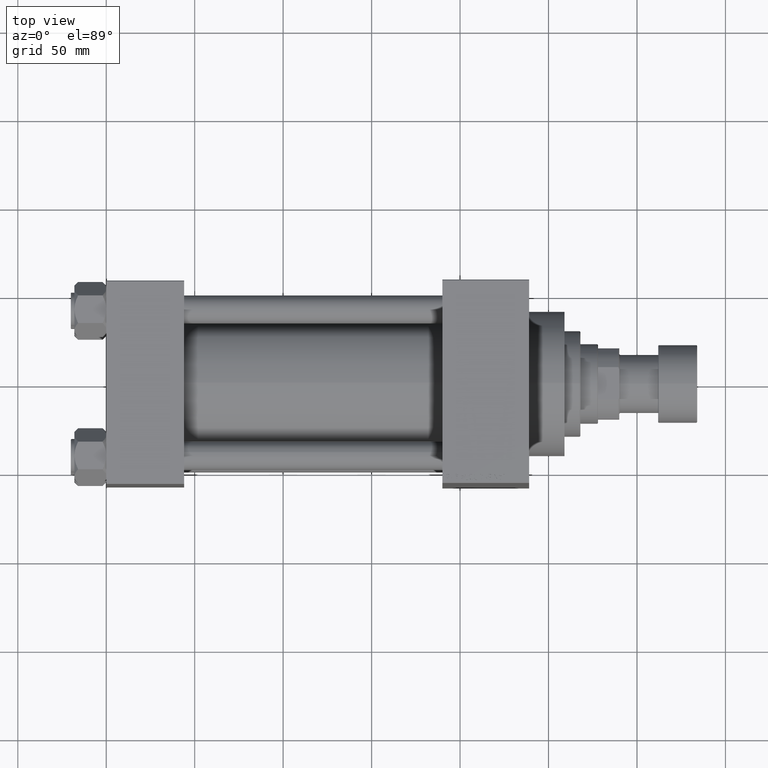
[diagram: clean part render]
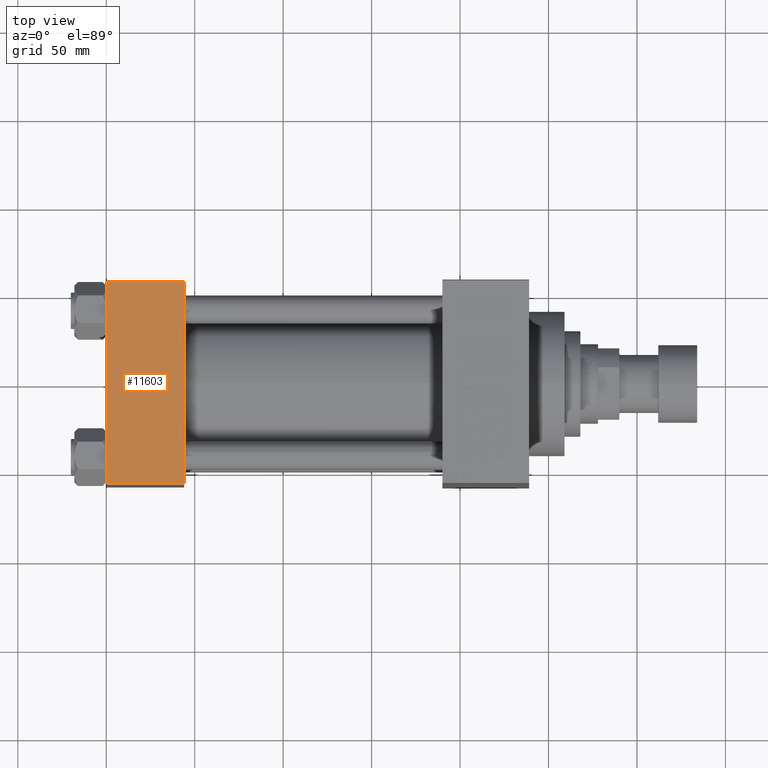
[diagram: same view with one face highlighted and labeled with its STEP entity id]
A machine part, top view. The second image highlights one B-rep face of the part: STEP entity #11603.
In plain terms, the highlighted planar face has unit normal (0, 0, -1).
Its self-contained STEP definition (entity closure, byte-faithful):
#3291 = EDGE_CURVE ( 'NONE', #34216, #8199, #3954, .T. ) ;
#3521 = DIRECTION ( 'NONE',  ( -1.000000000000000000, 0.000000000000000000, 0.000000000000000000 ) ) ;
#3742 = DIRECTION ( 'NONE',  ( 0.000000000000000000, 1.206764157201257045E-16, -1.000000000000000000 ) ) ;
#3954 = LINE ( 'NONE', #33739, #22657 ) ;
#7555 = VECTOR ( 'NONE', #45674, 1000.000000000000000 ) ;
#8199 = VERTEX_POINT ( 'NONE', #10992 ) ;
#8370 = FACE_OUTER_BOUND ( 'NONE', #34233, .T. ) ;
#9347 = ORIENTED_EDGE ( 'NONE', *, *, #41599, .T. ) ;
#9433 = VERTEX_POINT ( 'NONE', #13580 ) ;
#10992 = CARTESIAN_POINT ( 'NONE',  ( 44.00000000000000000, -57.00000000000003553, 57.49999999999999289 ) ) ;
#11603 = ADVANCED_FACE ( 'NONE', ( #8370 ), #12020, .F. ) ;
#12020 = PLANE ( 'NONE',  #39589 ) ;
#12189 = LINE ( 'NONE', #41996, #7555 ) ;
#13033 = VERTEX_POINT ( 'NONE', #19069 ) ;
#13580 = CARTESIAN_POINT ( 'NONE',  ( 0.000000000000000000, -57.00000000000003553, 57.49999999999999289 ) ) ;
#19069 = CARTESIAN_POINT ( 'NONE',  ( 0.000000000000000000, 57.00000000000000711, 57.50000000000000711 ) ) ;
#22084 = LINE ( 'NONE', #40886, #24542 ) ;
#22266 = ORIENTED_EDGE ( 'NONE', *, *, #3291, .F. ) ;
#22657 = VECTOR ( 'NONE', #26167, 1000.000000000000000 ) ;
#24542 = VECTOR ( 'NONE', #3521, 1000.000000000000000 ) ;
#25371 = ORIENTED_EDGE ( 'NONE', *, *, #34970, .T. ) ;
#26167 = DIRECTION ( 'NONE',  ( 0.000000000000000000, -1.000000000000000000, -1.206764157201257045E-16 ) ) ;
#26913 = DIRECTION ( 'NONE',  ( 0.000000000000000000, 1.000000000000000000, 1.206764157201257045E-16 ) ) ;
#33739 = CARTESIAN_POINT ( 'NONE',  ( 44.00000000000000000, 57.49999999999999289, 57.50000000000000711 ) ) ;
#34216 = VERTEX_POINT ( 'NONE', #40029 ) ;
#34233 = EDGE_LOOP ( 'NONE', ( #9347, #37205, #22266, #25371 ) ) ;
#34634 = DIRECTION ( 'NONE',  ( 1.000000000000000000, 0.000000000000000000, 0.000000000000000000 ) ) ;
#34970 = EDGE_CURVE ( 'NONE', #34216, #13033, #22084, .T. ) ;
#35107 = LINE ( 'NONE', #42914, #41041 ) ;
#37205 = ORIENTED_EDGE ( 'NONE', *, *, #43477, .T. ) ;
#37684 = CARTESIAN_POINT ( 'NONE',  ( 44.00000000000000000, 57.49999999999999289, 57.50000000000000711 ) ) ;
#39589 = AXIS2_PLACEMENT_3D ( 'NONE', #37684, #3742, #26913 ) ;
#40029 = CARTESIAN_POINT ( 'NONE',  ( 44.00000000000000000, 57.00000000000000711, 57.50000000000000711 ) ) ;
#40886 = CARTESIAN_POINT ( 'NONE',  ( 0.000000000000000000, 57.00000000000000711, 57.50000000000000711 ) ) ;
#41041 = VECTOR ( 'NONE', #34634, 1000.000000000000000 ) ;
#41599 = EDGE_CURVE ( 'NONE', #13033, #9433, #12189, .T. ) ;
#41996 = CARTESIAN_POINT ( 'NONE',  ( 0.000000000000000000, 57.49999999999999289, 57.50000000000000711 ) ) ;
#42914 = CARTESIAN_POINT ( 'NONE',  ( 44.00000000000000000, -57.00000000000003553, 57.49999999999999289 ) ) ;
#43477 = EDGE_CURVE ( 'NONE', #9433, #8199, #35107, .T. ) ;
#45674 = DIRECTION ( 'NONE',  ( 0.000000000000000000, -1.000000000000000000, -1.206764157201257045E-16 ) ) ;